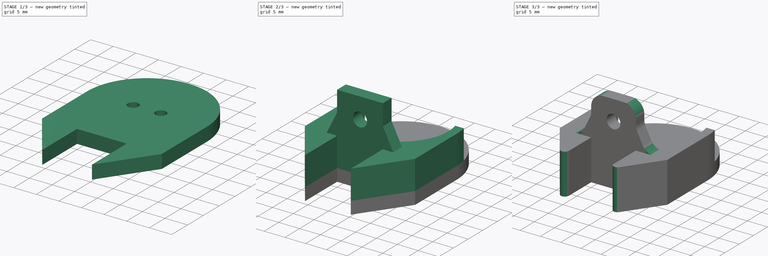
[diagram: build sequence overview — one tinted view per stage of 3, left to right]
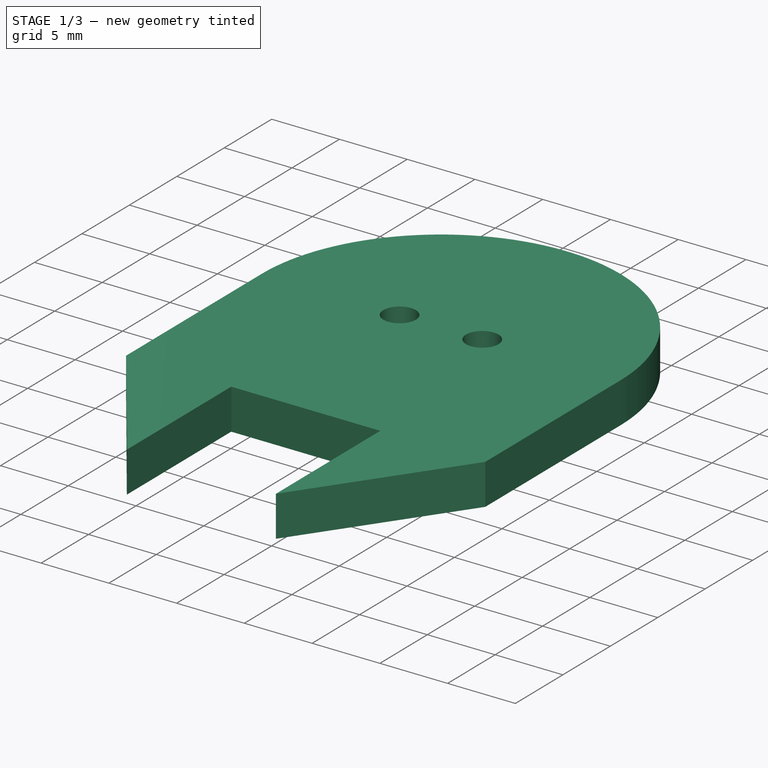
[diagram: stage 1 of 3 — iso view after this stage's code; geometry added in this stage tinted green]
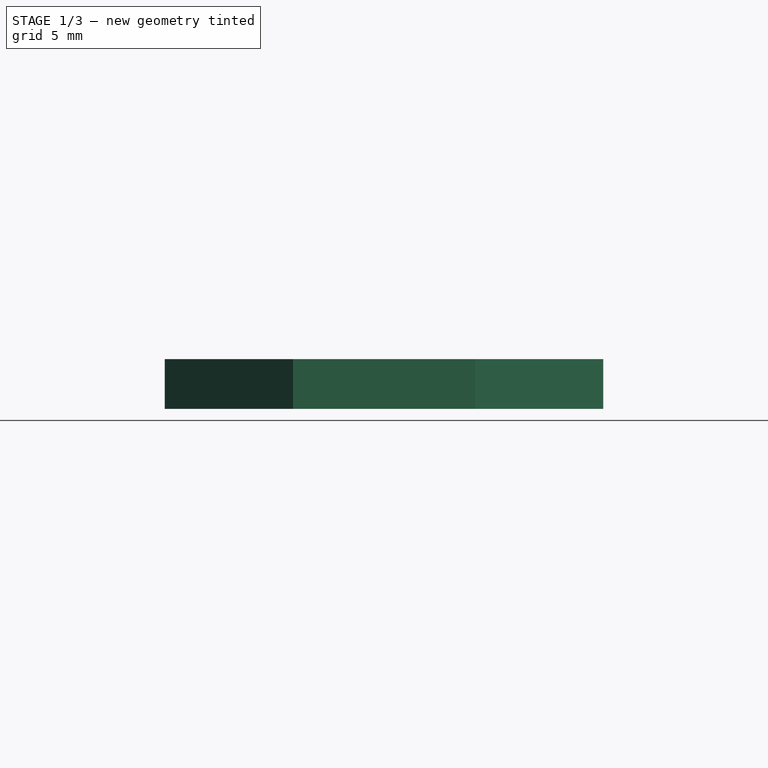
[diagram: stage 1 of 3 — front view after this stage's code; geometry added in this stage tinted green]
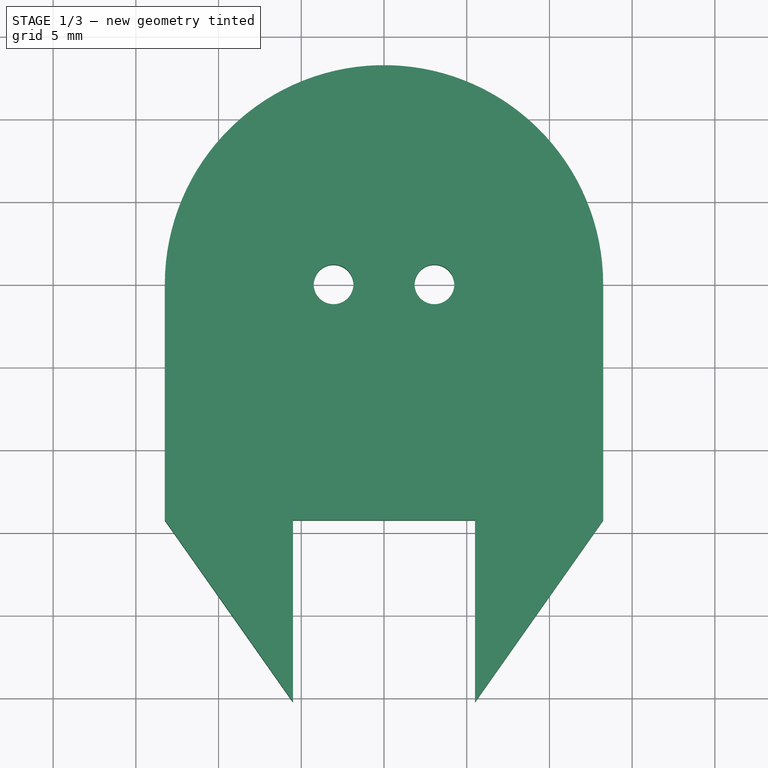
[diagram: stage 1 of 3 — top view after this stage's code; geometry added in this stage tinted green]
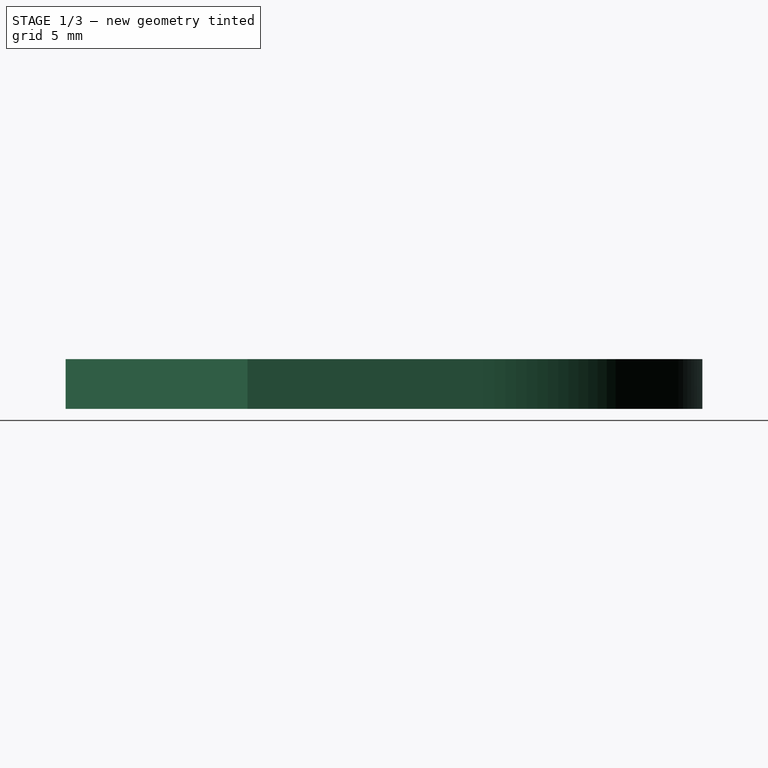
[diagram: stage 1 of 3 — right view after this stage's code; geometry added in this stage tinted green]
FCSTD DOCUMENT  (FreeCAD 0.19R24291 (Git))
Label: Support_bille_3-4_plastic
License: All rights reserved
LicenseURL: http://en.wikipedia.org/wiki/All_rights_reserved
objects: Sketcher::SketchObject×4, PartDesign::Pad×3, PartDesign::Fillet×2, PartDesign::Pocket×1, PartDesign::Body×1
note: 17 computed .brp shape members not serialized (recipe doc carries the construction recipe); baked Part::Feature solids carry a one-line shape summary decoded from their .brp

FEATURE [Sketcher::SketchObject] Sketch
  FullyConstrained = false
  MapMode = 5
  Support = -> [XY_Plane]
  sketch-geometry (18):
    g0: Circle CenterX=0 CenterY=0 CenterZ=0 NormalX=0 NormalY=0 NormalZ=1 AngleXU=0 Radius=11.25
    g1: Circle CenterX=0 CenterY=0 CenterZ=0 NormalX=0 NormalY=0 NormalZ=1 AngleXU=0 Radius=13.25
    g2: GeomPoint X=-13.25 Y=1.6e-15 Z=0
    g3: GeomPoint X=13.25 Y=0 Z=0
    g4: LineSegment StartX=5.5 StartY=-14.25 StartZ=0 EndX=5.5 EndY=-25.25 EndZ=0
    g5: LineSegment StartX=5.5 StartY=-25.25 StartZ=0 EndX=-5.5 EndY=-25.25 EndZ=0
    g6: LineSegment StartX=-5.5 StartY=-25.25 StartZ=0 EndX=-5.5 EndY=-14.25 EndZ=0
    g7: ArcOfCircle CenterX=0 CenterY=0 CenterZ=0 NormalX=0 NormalY=0 NormalZ=1 AngleXU=0 Radius=13.25 StartAngle=0 EndAngle=3.14159
    g8: LineSegment StartX=-13.25 StartY=-14.25 StartZ=0 EndX=-13.25 EndY=1.8e-15 EndZ=0
    g9: LineSegment StartX=13.25 StartY=-14.25 StartZ=0 EndX=13.25 EndY=0 EndZ=0
    g10: LineSegment StartX=-13.25 StartY=-14.25 StartZ=0 EndX=-5.5 EndY=-25.25 EndZ=0
    g11: LineSegment StartX=5.5 StartY=-25.25 StartZ=0 EndX=13.25 EndY=-14.25 EndZ=0
    g12: LineSegment StartX=-5.5 StartY=-14.25 StartZ=0 EndX=5.5 EndY=-14.25 EndZ=0
    g13: GeomPoint X=0 Y=-14.25 Z=0
    g14: GeomPoint X=0 Y=-11.25 Z=0
    g15: GeomPoint X=0 Y=-19.75 Z=0
    g16: LineSegment StartX=-5.5 StartY=-14.25 StartZ=0 EndX=0 EndY=-19.75 EndZ=0
    g17: LineSegment StartX=0 StartY=-19.75 StartZ=0 EndX=5.5 EndY=-25.25 EndZ=0
  constraints (41):
    c: Coincident(g0,g-1)
    c: Radius(g0) = 11.25
    c: Coincident(g1,g0)
    c: Radius(g1) = 13.25
    c: PointOnObject(g2,g-1)
    c: PointOnObject(g3,g-1)
    c: PointOnObject(g3,g1)
    c: Coincident(g4,g5)
    c: Coincident(g5,g6)
    c: Horizontal(g5)
    c: Vertical(g4)
    c: Vertical(g6)
    c: Equal(g4,g5)
    c: DistanceX(g5,g5) = 11
    c: Coincident(g7,g-1)
    c: Coincident(g8,g7)
    c: Vertical(g8)
    c: Coincident(g9,g7)
    c: Vertical(g9)
    c: Coincident(g10,g5)
    c: Coincident(g11,g4)
    c: Equal(g10,g11)
    c: Equal(g8,g9)
    c: Coincident(g7,g3)
    c: Coincident(g11,g9)
    c: Coincident(g8,g10)
    c: Coincident(g12,g6)
    c: Coincident(g12,g4)
    c: Horizontal(g12)
    c: PointOnObject(g13,g-2)
    c: Symmetric(g6,g4,g13)
    c: PointOnObject(g14,g0)
    c: PointOnObject(g14,g-2)
    c: DistanceY(g13,g14) = 3
    c: Horizontal(g8,g6)
    c: PointOnObject(g15,g-2)
    c: Coincident(g16,g6)
    c: Coincident(g16,g15)
    c: Coincident(g17,g16)
    c: Coincident(g17,g4)
    c: Equal(g17,g16)
FEATURE [PartDesign::Pad] Pad  label="base sup"
  Direction = (1,1,1)
  Length = 3
  Length2 = 100
  Profile = -> Sketch
  Type = 0
FEATURE [Sketcher::SketchObject] Sketch001
  ExternalGeometry = -> [Pad]
  FullyConstrained = true
  MapMode = 5
  Placement = pos=(0,0,3) rot=(0,0,1;0rad)
  Support = -> [Pad]
  sketch-geometry (3):
    g0: Circle CenterX=0 CenterY=0 CenterZ=0 NormalX=0 NormalY=0 NormalZ=1 AngleXU=0 Radius=13.25
    g1: Circle CenterX=-3.05 CenterY=0 CenterZ=0 NormalX=0 NormalY=0 NormalZ=1 AngleXU=0 Radius=1.2
    g2: Circle CenterX=3.05 CenterY=0 CenterZ=0 NormalX=0 NormalY=0 NormalZ=1 AngleXU=0 Radius=1.2
  constraints (7):
    c: Coincident(g0,g-1)
    c: Tangent(g0,g-3)
    c: PointOnObject(g1,g-1)
    c: Radius(g1) = 1.2
    c: Radius(g2) = 1.2
    c: DistanceX(g1,g-1) = 3.05
    c: Symmetric(g2,g1,g-1)
FEATURE [PartDesign::Pocket] Pocket  label="trous_m2"
  BaseFeature = -> Pad
  Length = 5
  Length2 = 100
  Profile = -> Sketch001
  Type = 1
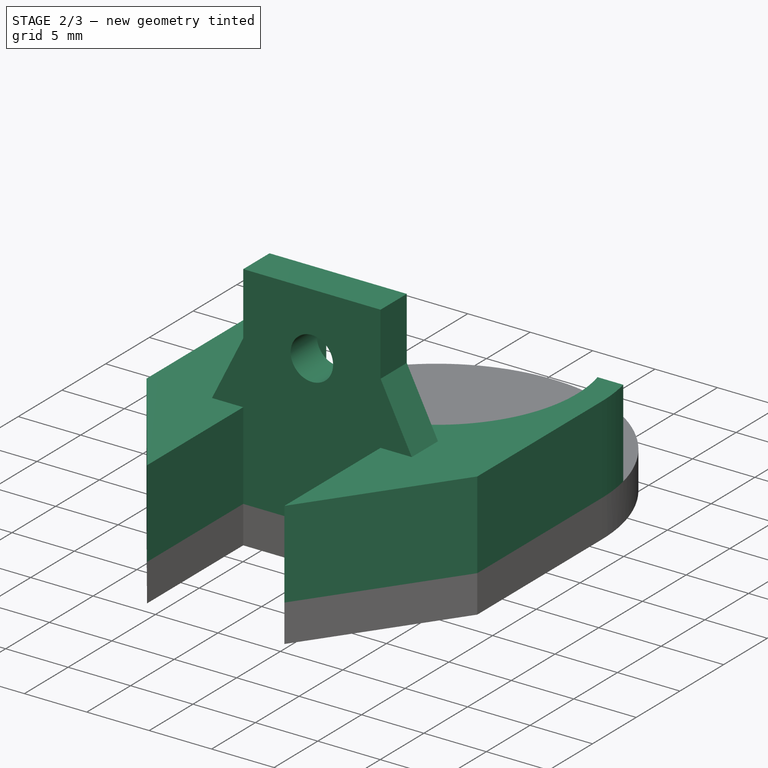
[diagram: stage 2 of 3 — iso view after this stage's code; geometry added in this stage tinted green]
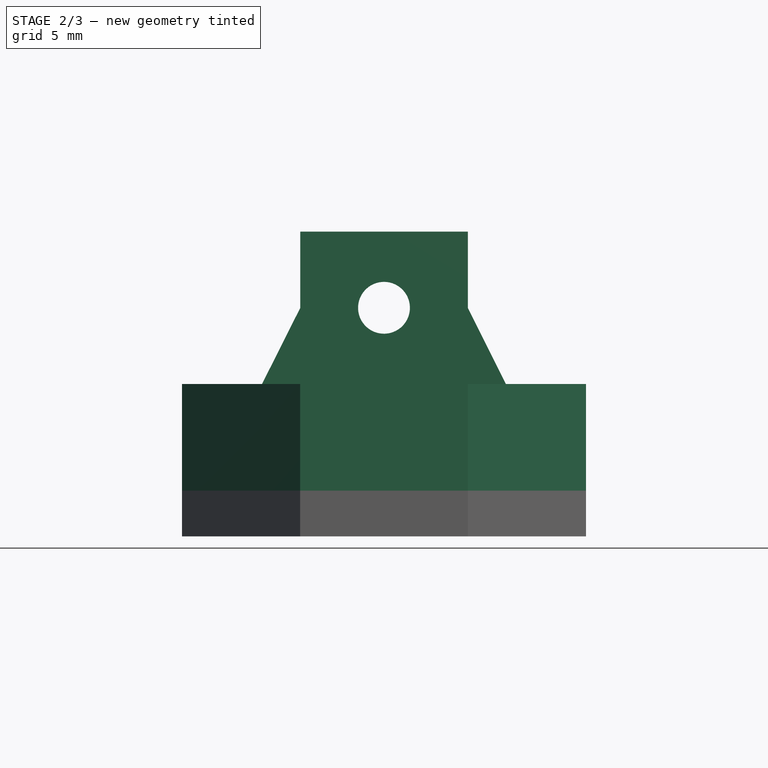
[diagram: stage 2 of 3 — front view after this stage's code; geometry added in this stage tinted green]
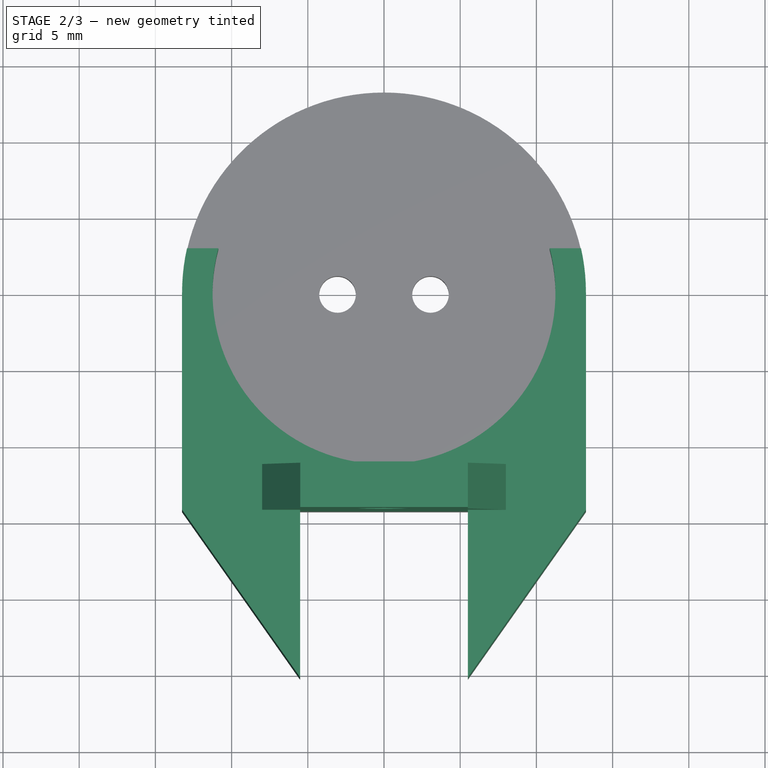
[diagram: stage 2 of 3 — top view after this stage's code; geometry added in this stage tinted green]
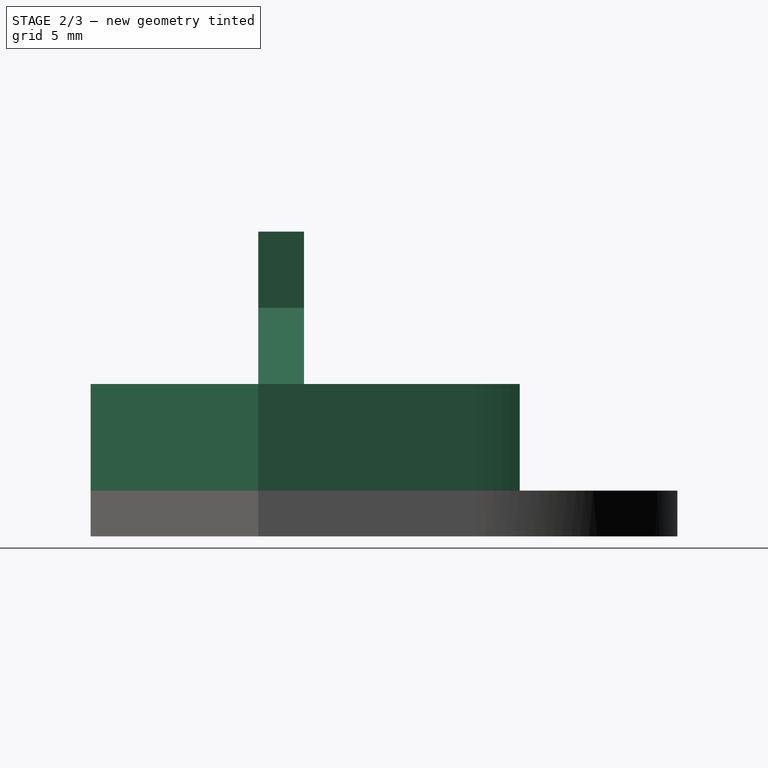
[diagram: stage 2 of 3 — right view after this stage's code; geometry added in this stage tinted green]
FEATURE [Sketcher::SketchObject] Sketch002
  ExternalGeometry = -> [Pocket]
  FullyConstrained = false
  MapMode = 5
  Placement = pos=(0,0,3) rot=(0,0,1;0rad)
  Support = -> [Pocket]
  sketch-geometry (14):
    g0: Circle CenterX=0 CenterY=0 CenterZ=0 NormalX=0 NormalY=0 NormalZ=1 AngleXU=0 Radius=11.25
    g1: LineSegment StartX=-13.25 StartY=1.6e-15 StartZ=0 EndX=-13.25 EndY=-14.25 EndZ=0
    g2: LineSegment StartX=-13.25 StartY=-14.25 StartZ=0 EndX=-5.5 EndY=-25.25 EndZ=0
    g3: LineSegment StartX=-5.5 StartY=-25.25 StartZ=0 EndX=-5.5 EndY=-14.25 EndZ=0
    g4: LineSegment StartX=-5.5 StartY=-14.25 StartZ=0 EndX=5.5 EndY=-14.25 EndZ=0
    g5: LineSegment StartX=5.5 StartY=-14.25 StartZ=0 EndX=5.5 EndY=-25.25 EndZ=0
    g6: LineSegment StartX=5.5 StartY=-25.25 StartZ=0 EndX=13.25 EndY=-14.25 EndZ=0
    g7: LineSegment StartX=13.25 StartY=-14.25 StartZ=0 EndX=13.25 EndY=0 EndZ=0
    g8: ArcOfCircle CenterX=0 CenterY=0 CenterZ=0 NormalX=0 NormalY=0 NormalZ=1 AngleXU=0 Radius=11.25 StartAngle=2.88016 EndAngle=6.54462
    g9: LineSegment StartX=-10.8677 StartY=2.90775 StartZ=0 EndX=10.8677 EndY=2.90775 EndZ=0
    g10: ArcOfCircle CenterX=0 CenterY=0 CenterZ=0 NormalX=0 NormalY=0 NormalZ=1 AngleXU=0 Radius=13.25 StartAngle=2.92034 EndAngle=3.14159
    g11: LineSegment StartX=-12.927 StartY=2.90775 StartZ=0 EndX=-10.8677 EndY=2.90775 EndZ=0
    g12: ArcOfCircle CenterX=0 CenterY=0 CenterZ=0 NormalX=0 NormalY=0 NormalZ=1 AngleXU=0 Radius=13.25 StartAngle=0 EndAngle=0.221253
    g13: LineSegment StartX=10.8677 StartY=2.90775 StartZ=0 EndX=12.927 EndY=2.90775 EndZ=0
  constraints (32):
    c: Coincident(g0,g-1)
    c: Radius(g0) = 11.25
    c: Coincident(g1,g-4)
    c: Coincident(g1,g-5)
    c: Coincident(g2,g1)
    c: Coincident(g2,g-6)
    c: Coincident(g3,g2)
    c: Coincident(g3,g-7)
    c: Coincident(g4,g3)
    c: Coincident(g4,g-8)
    c: Coincident(g5,g4)
    c: Coincident(g5,g-9)
    c: Coincident(g6,g5)
    c: Coincident(g6,g-10)
    c: Coincident(g7,g6)
    c: Coincident(g7,g-10)
    c: Coincident(g8,g-1)
    c: PointOnObject(g8,g0)
    c: Coincident(g9,g8)
    c: Coincident(g9,g8)
    c: Horizontal(g9)
    c: Coincident(g10,g8)
    c: Coincident(g10,g1)
    c: Coincident(g11,g10)
    c: Coincident(g11,g8)
    c: Horizontal(g11)
    c: Radius(g-3) = 13.25
    c: Coincident(g12,g8)
    c: Coincident(g12,g7)
    c: Coincident(g13,g8)
    c: Coincident(g13,g12)
    c: Horizontal(g13)
FEATURE [PartDesign::Pad] Pad001  label="etage"
  BaseFeature = -> Pocket
  Direction = (1,1,1)
  Length = 7
  Length2 = 100
  Profile = -> Sketch002
  Type = 0
FEATURE [Sketcher::SketchObject] Sketch003
  ExternalGeometry = -> [Pad001]
  FullyConstrained = false
  MapMode = 5
  Placement = pos=(0,-14.25,0) rot=(1,0,0;1.5708rad)
  Support = -> [Pad001]
  sketch-geometry (11):
    g0: LineSegment StartX=-5.5 StartY=10 StartZ=0 EndX=5.5 EndY=10 EndZ=0
    g1: LineSegment StartX=5.5 StartY=20 StartZ=0 EndX=-5.49389 EndY=20 EndZ=0
    g2: LineSegment StartX=-5.49694 StartY=15 StartZ=0 EndX=5.5 EndY=15 EndZ=0
    g3: GeomPoint X=0 Y=15 Z=0
    g4: Circle CenterX=0 CenterY=15 CenterZ=0 NormalX=0 NormalY=0 NormalZ=1 AngleXU=0 Radius=1.7
    g5: LineSegment StartX=-5.49389 StartY=15 StartZ=0 EndX=-5.49389 EndY=20 EndZ=0
    g6: LineSegment StartX=5.5 StartY=15 StartZ=0 EndX=5.5 EndY=20 EndZ=0
    g7: LineSegment StartX=-5.49389 StartY=15 StartZ=0 EndX=-8 EndY=10 EndZ=0
    g8: LineSegment StartX=-5.5 StartY=10 StartZ=0 EndX=-8 EndY=10 EndZ=0
    g9: LineSegment StartX=5.5 StartY=15 StartZ=0 EndX=8 EndY=10 EndZ=0
    g10: LineSegment StartX=8 StartY=10 StartZ=0 EndX=5.5 EndY=10 EndZ=0
  constraints (24):
    c: Horizontal(g1)
    c: Coincident(g0,g-3)
    c: Coincident(g0,g-3)
    c: DistanceY(g0,g1) = 10
    c: Horizontal(g2)
    c: Symmetric(g0,g1,g2)
    c: PointOnObject(g3,g2)
    c: PointOnObject(g3,g-2)
    c: Coincident(g4,g3)
    c: Radius(g4) = 1.7
    c: Coincident(g5,g1)
    c: Vertical(g5)
    c: Coincident(g6,g1)
    c: Vertical(g6)
    c: Coincident(g7,g5)
    c: Coincident(g8,g0)
    c: Horizontal(g8)
    c: Coincident(g7,g8)
    c: DistanceX(g8,g8) = 2.5
    c: Coincident(g9,g6)
    c: Coincident(g10,g9)
    c: Coincident(g10,g0)
    c: Horizontal(g10)
    c: Equal(g10,g8)
FEATURE [PartDesign::Pad] Pad002  label="fix_profile"
  BaseFeature = -> Pad001
  Direction = (1,1,1)
  Length = 3
  Length2 = 100
  Profile = -> Sketch003
  Reversed = true
  Type = 0
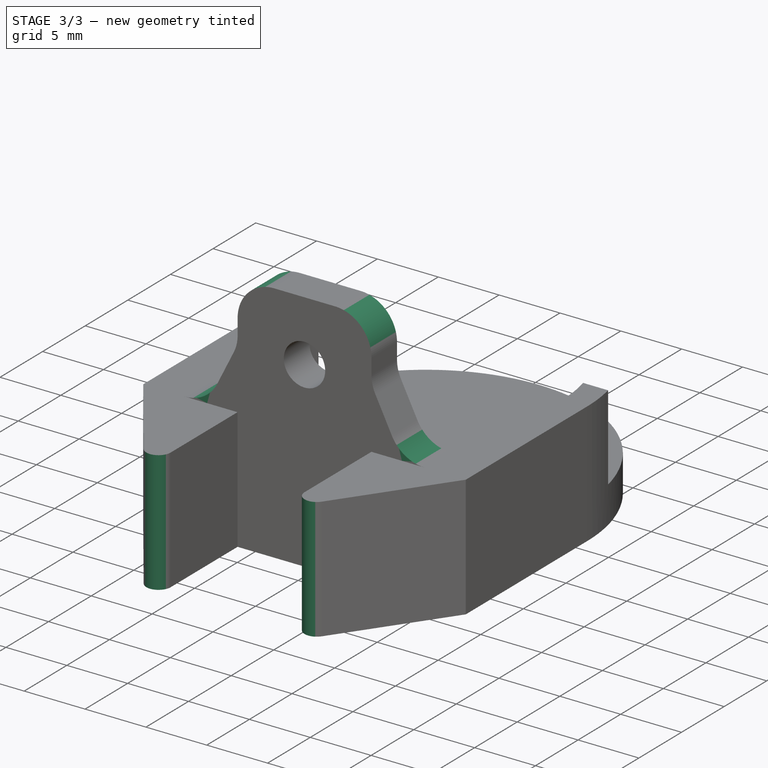
[diagram: stage 3 of 3 — iso view after this stage's code; geometry added in this stage tinted green]
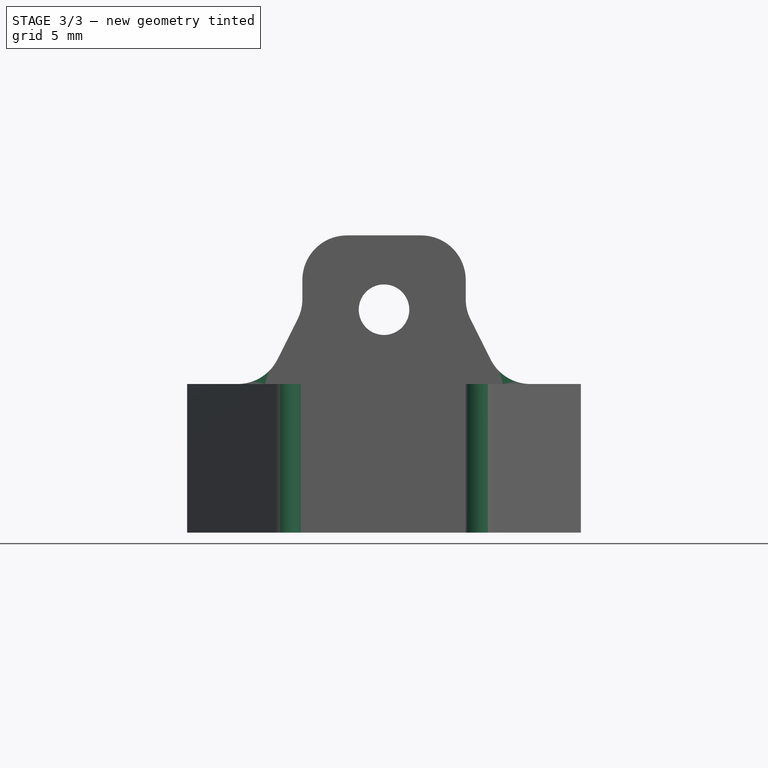
[diagram: stage 3 of 3 — front view after this stage's code; geometry added in this stage tinted green]
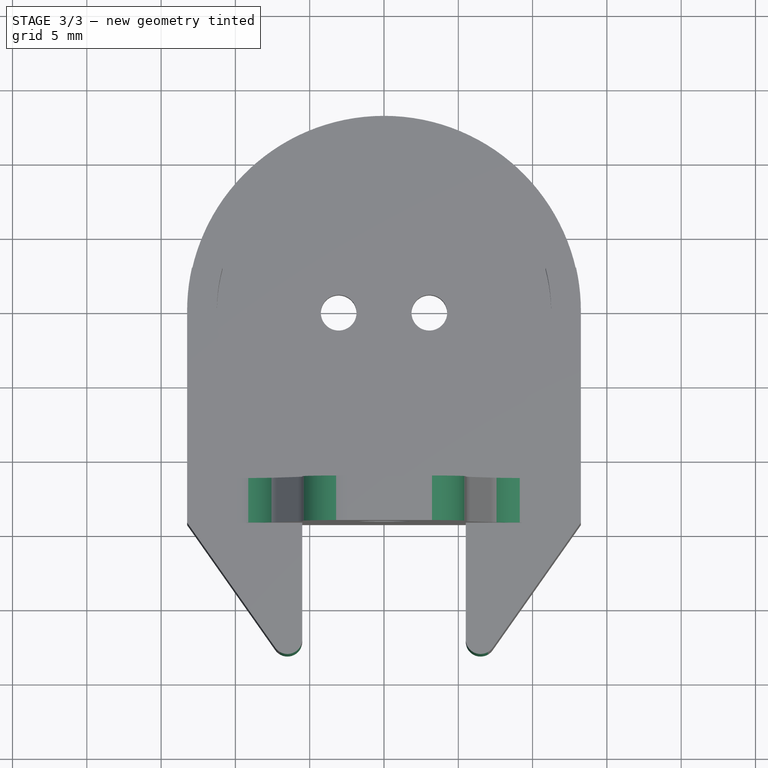
[diagram: stage 3 of 3 — top view after this stage's code; geometry added in this stage tinted green]
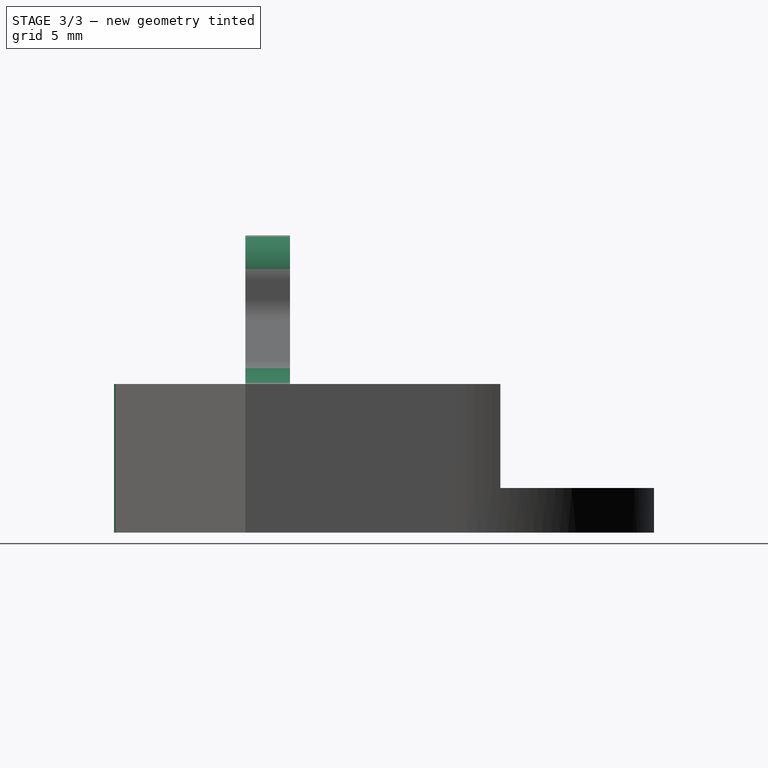
[diagram: stage 3 of 3 — right view after this stage's code; geometry added in this stage tinted green]
FEATURE [PartDesign::Fillet] Fillet  label="fix_fillet"
  Base = -> Pad002 [Edge81,Edge82,Edge83,Edge84,Edge72,Edge44]
  BaseFeature = -> Pad002
  Radius = 3
  SupportTransform = false
FEATURE [PartDesign::Fillet] Fillet001  label="prof_fillet"
  Base = -> Fillet [Edge30,Edge76,Edge91,Edge107]
  BaseFeature = -> Fillet
  Radius = 1
  SupportTransform = false
FEATURE [PartDesign::Body] Body
  Group = -> [Sketch,Pad,Sketch001,Pocket,Sketch002,Pad001,Sketch003,Pad002,Fillet,Fillet001]
  Origin = -> Origin
  Tip = -> Fillet001
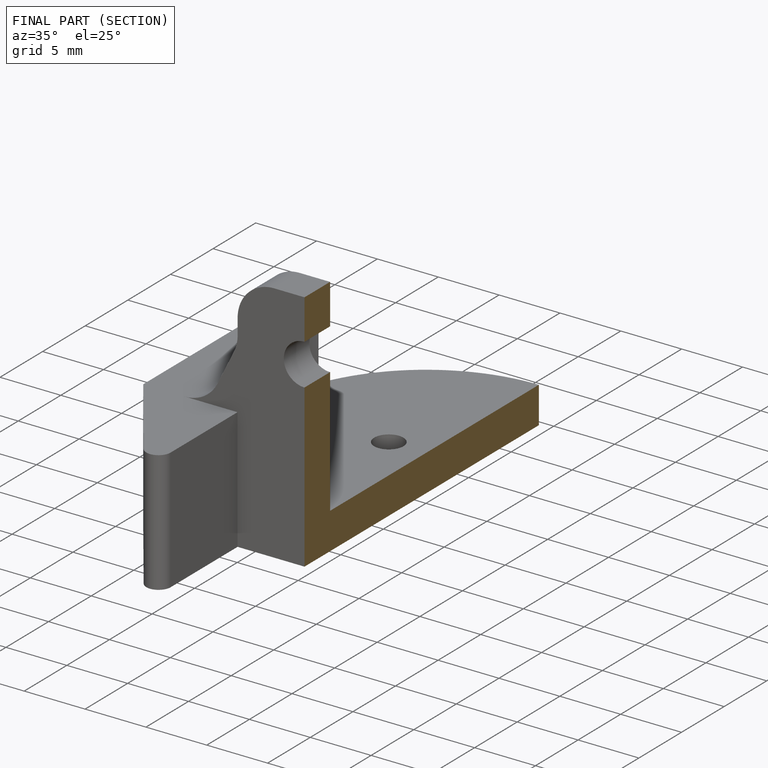
[diagram: finished part — half-section view (interior)]
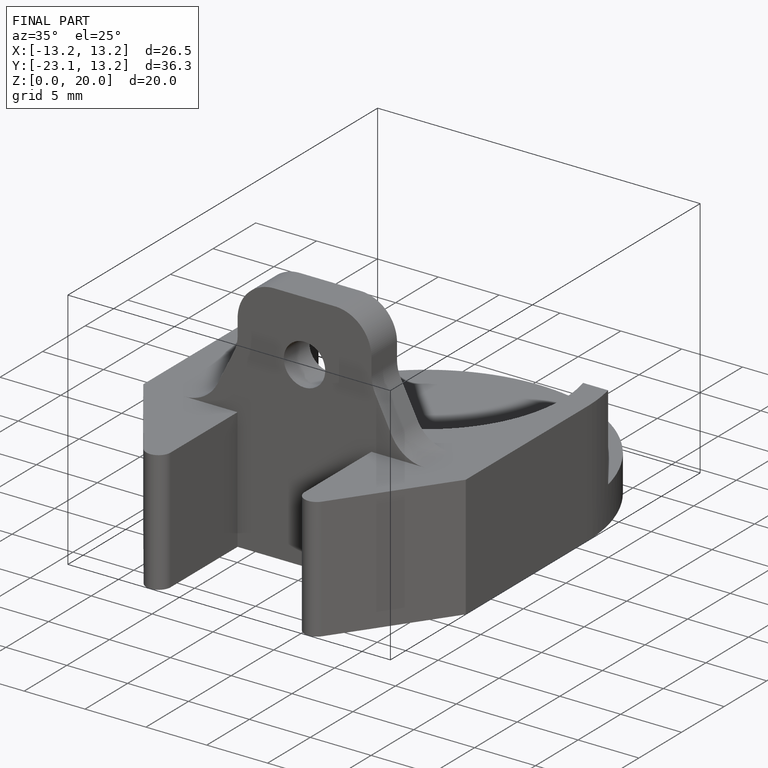
[diagram: finished part — iso view with bounding-box wireframe]
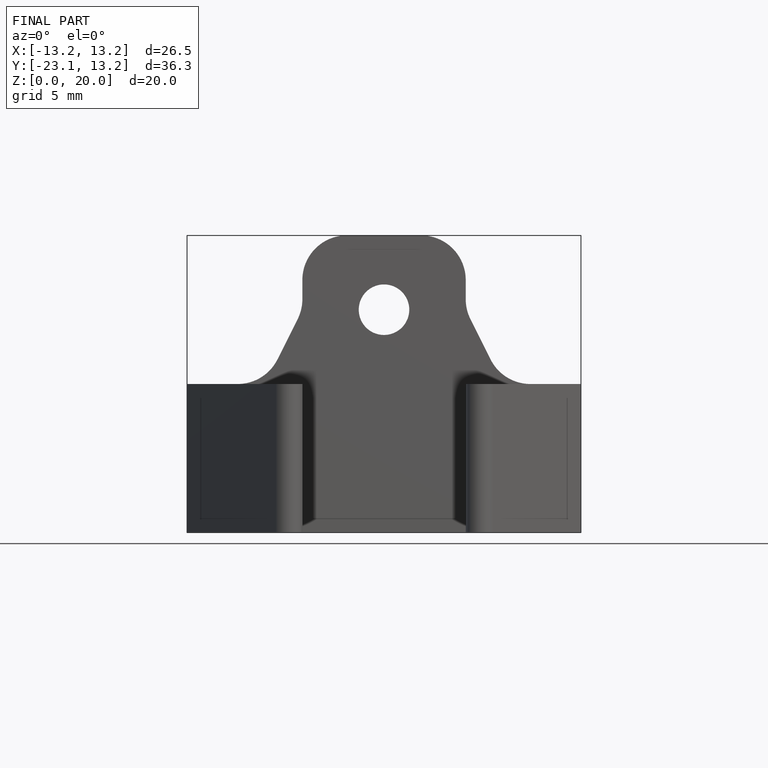
[diagram: finished part — front view with bounding-box wireframe]
